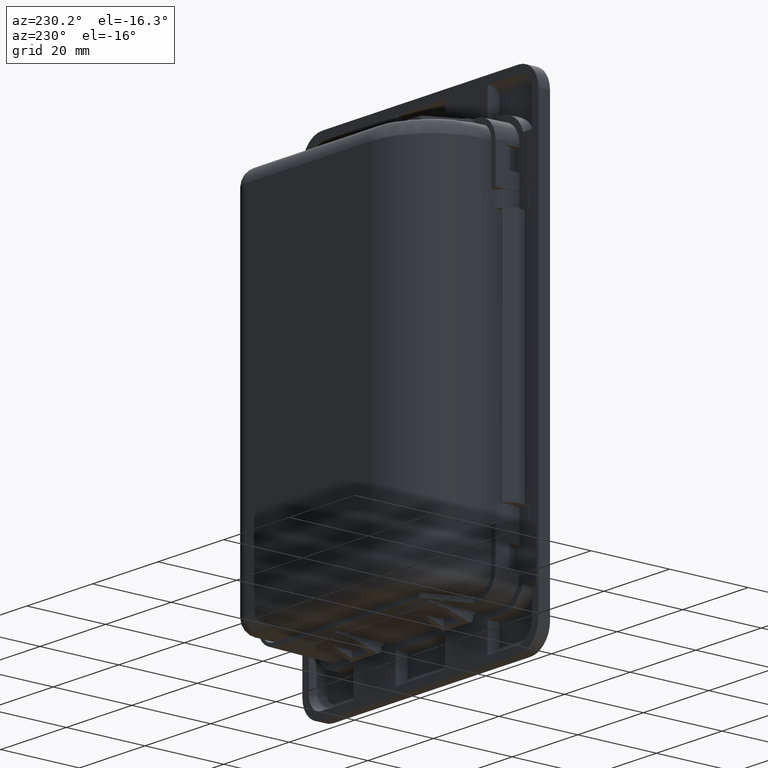
[diagram: clean part render]
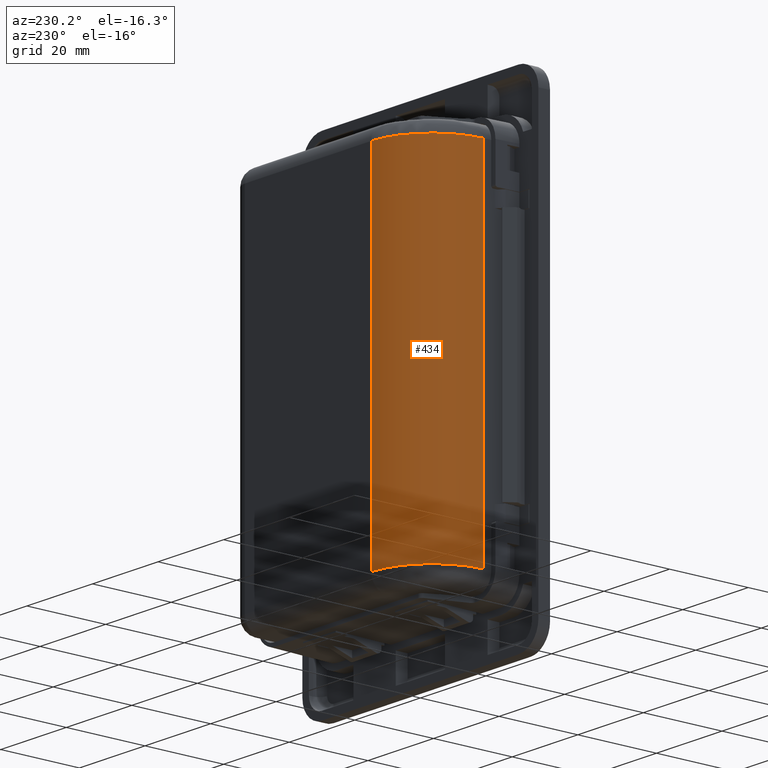
[diagram: same view with one face highlighted and labeled with its STEP entity id]
A machine part, auxiliary view. The second image highlights one B-rep face of the part: STEP entity #434.
In plain terms, the highlighted cylindrical surface (partial cylindrical patch) has radius 15.5 mm, axis along (-0, 0, -1).
Its self-contained STEP definition (entity closure, byte-faithful):
#434=ADVANCED_FACE('',(#4984),#4983,.T.);
#4983=CYLINDRICAL_SURFACE('',#12934,1.55000000000E+001);
#4984=FACE_OUTER_BOUND('',#12935,.T.);
#12931=CARTESIAN_POINT('',(-1.31999999998E+001,8.00000000000E+000,-9.52200000000E+002));
#12932=DIRECTION('',(-0.00000000000E+000,0.00000000000E+000,-1.00000000000E+000));
#12933=DIRECTION('',(-1.00000000000E+000,-0.00000000000E+000,-0.00000000000E+000));
#12934=AXIS2_PLACEMENT_3D('',#12931,#12932,#12933);
#12935=EDGE_LOOP('',(#20950,#20951,#20952,#20953));
#20950=ORIENTED_EDGE('',*,*,#25252,.T.);
#20951=ORIENTED_EDGE('',*,*,#25175,.T.);
#20952=ORIENTED_EDGE('',*,*,#25257,.F.);
#20953=ORIENTED_EDGE('',*,*,#25258,.T.);
#25175=EDGE_CURVE('',#36301,#36329,#36336,.T.);
#25252=EDGE_CURVE('',#26045,#36301,#36848,.T.);
#25257=EDGE_CURVE('',#36880,#36329,#36881,.T.);
#25258=EDGE_CURVE('',#36880,#26045,#36887,.T.);
#26045=VERTEX_POINT('',#41795);
#36301=VERTEX_POINT('',#47934);
#36329=VERTEX_POINT('',#47973);
#36336=CIRCLE('',#47981,1.55000000000E+001);
#36848=LINE('',#48276,#48277);
#36880=VERTEX_POINT('',#48292);
#36881=LINE('',#48293,#48294);
#36887=CIRCLE('',#48299,1.55000000000E+001);
#41795=CARTESIAN_POINT('',(-2.86999999998E+001,7.99999999982E+000,-4.37999999999E+001));
#47934=CARTESIAN_POINT('',(-2.86999999998E+001,7.99999999982E+000,4.38000000001E+001));
#47973=CARTESIAN_POINT('',(-1.31999999998E+001,2.35000000000E+001,4.38000000001E+001));
#47978=CARTESIAN_POINT('',(-1.31999999998E+001,8.00000000000E+000,4.38000000001E+001));
#47979=DIRECTION('',(0.00000000000E+000,0.00000000000E+000,-1.00000000000E+000));
#47980=DIRECTION('',(1.00000000000E+000,-0.00000000000E+000,-0.00000000000E+000));
#47981=AXIS2_PLACEMENT_3D('',#47978,#47979,#47980);
#48276=CARTESIAN_POINT('',(-2.86999999998E+001,7.99999999982E+000,-4.37999999999E+001));
#48277=VECTOR('',#48278,8.76000000000E+001);
#48278=DIRECTION('',(0.00000000000E+000,0.00000000000E+000,1.00000000000E+000));
#48292=CARTESIAN_POINT('',(-1.31999999998E+001,2.35000000000E+001,-4.37999999999E+001));
#48293=CARTESIAN_POINT('',(-1.31999999998E+001,2.35000000000E+001,-4.37999999999E+001));
#48294=VECTOR('',#48295,8.76000000000E+001);
#48295=DIRECTION('',(0.00000000000E+000,0.00000000000E+000,1.00000000000E+000));
#48296=CARTESIAN_POINT('',(-1.31999999998E+001,8.00000000000E+000,-4.37999999999E+001));
#48297=DIRECTION('',(0.00000000000E+000,-0.00000000000E+000,1.00000000000E+000));
#48298=DIRECTION('',(1.00000000000E+000,-0.00000000000E+000,-0.00000000000E+000));
#48299=AXIS2_PLACEMENT_3D('',#48296,#48297,#48298);